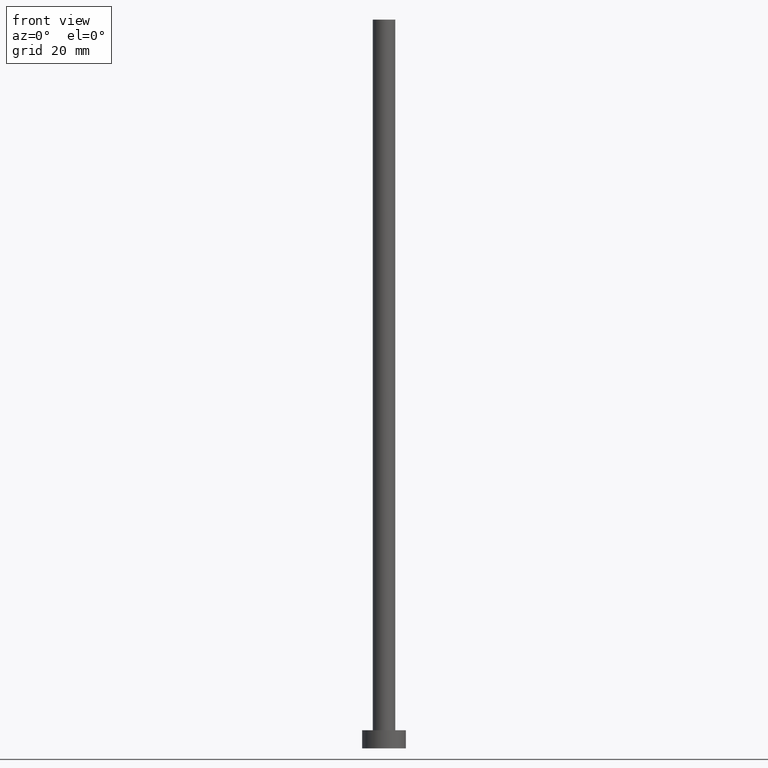
[diagram: clean part render]
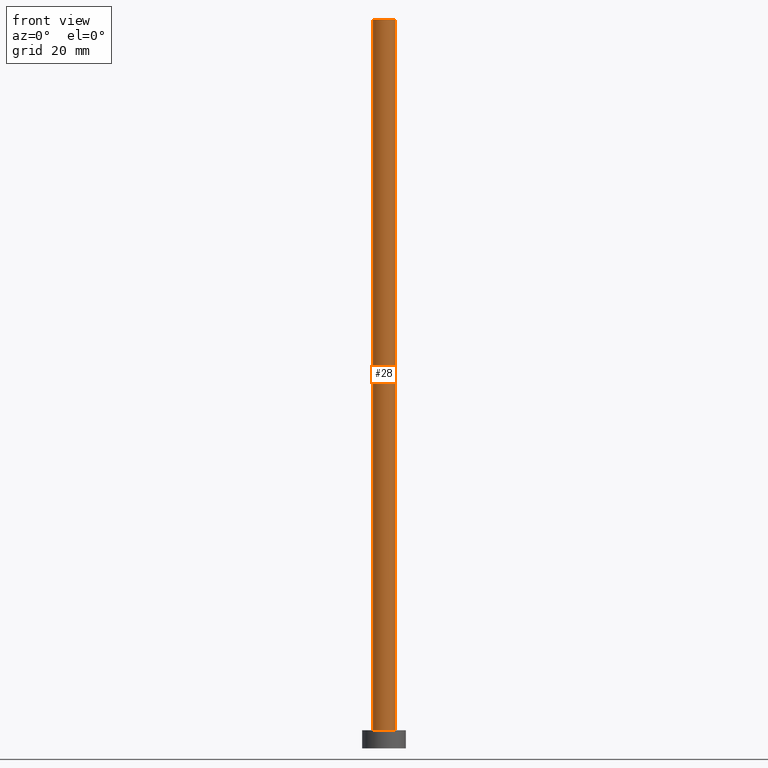
[diagram: same view with one face highlighted and labeled with its STEP entity id]
A machine part, front view. The second image highlights one B-rep face of the part: STEP entity #28.
In plain terms, the highlighted cylindrical surface (edge-blend (fillet) strip) has radius 3.1 mm, axis along (-0, -0, -1).
Its self-contained STEP definition (entity closure, byte-faithful):
#25 = CARTESIAN_POINT ( 'NONE',  ( 3.100000000000000089, 3.796405077356794918E-16, 200.0000000000000000 ) ) ;
#28 = ADVANCED_FACE ( 'NONE', ( #206 ), #65, .T. ) ;
#29 = AXIS2_PLACEMENT_3D ( 'NONE', #229, #156, #35 ) ;
#34 = AXIS2_PLACEMENT_3D ( 'NONE', #84, #150, #107 ) ;
#35 = DIRECTION ( 'NONE',  ( 1.000000000000000000, 0.000000000000000000, 0.000000000000000000 ) ) ;
#47 = CARTESIAN_POINT ( 'NONE',  ( -3.100000000000000089, 0.000000000000000000, 5.000000000000000000 ) ) ;
#49 = DIRECTION ( 'NONE',  ( -1.000000000000000000, 0.000000000000000000, 0.000000000000000000 ) ) ;
#54 = CARTESIAN_POINT ( 'NONE',  ( -3.100000000000000089, 0.000000000000000000, 200.0000000000000000 ) ) ;
#56 = VERTEX_POINT ( 'NONE', #47 ) ;
#65 = CYLINDRICAL_SURFACE ( 'NONE', #190, 3.100000000000000089 ) ;
#84 = CARTESIAN_POINT ( 'NONE',  ( 0.000000000000000000, 0.000000000000000000, 5.000000000000000000 ) ) ;
#86 = DIRECTION ( 'NONE',  ( -0.000000000000000000, -0.000000000000000000, -1.000000000000000000 ) ) ;
#90 = CARTESIAN_POINT ( 'NONE',  ( 3.100000000000000089, 3.796405077356794918E-16, 200.0000000000000000 ) ) ;
#98 = EDGE_LOOP ( 'NONE', ( #195, #179, #253, #120 ) ) ;
#101 = CARTESIAN_POINT ( 'NONE',  ( -3.100000000000000089, 0.000000000000000000, 200.0000000000000000 ) ) ;
#107 = DIRECTION ( 'NONE',  ( 1.000000000000000000, 0.000000000000000000, 0.000000000000000000 ) ) ;
#116 = EDGE_CURVE ( 'NONE', #178, #149, #223, .T. ) ;
#120 = ORIENTED_EDGE ( 'NONE', *, *, #144, .T. ) ;
#139 = EDGE_CURVE ( 'NONE', #242, #56, #171, .T. ) ;
#144 = EDGE_CURVE ( 'NONE', #56, #149, #151, .T. ) ;
#146 = VECTOR ( 'NONE', #173, 1000.000000000000000 ) ;
#147 = CARTESIAN_POINT ( 'NONE',  ( 0.000000000000000000, 0.000000000000000000, 200.0000000000000000 ) ) ;
#149 = VERTEX_POINT ( 'NONE', #249 ) ;
#150 = DIRECTION ( 'NONE',  ( 0.000000000000000000, 0.000000000000000000, 1.000000000000000000 ) ) ;
#151 = CIRCLE ( 'NONE', #34, 3.100000000000000089 ) ;
#156 = DIRECTION ( 'NONE',  ( 0.000000000000000000, 0.000000000000000000, 1.000000000000000000 ) ) ;
#171 = LINE ( 'NONE', #101, #146 ) ;
#173 = DIRECTION ( 'NONE',  ( -0.000000000000000000, -0.000000000000000000, -1.000000000000000000 ) ) ;
#178 = VERTEX_POINT ( 'NONE', #25 ) ;
#179 = ORIENTED_EDGE ( 'NONE', *, *, #243, .F. ) ;
#190 = AXIS2_PLACEMENT_3D ( 'NONE', #147, #86, #49 ) ;
#195 = ORIENTED_EDGE ( 'NONE', *, *, #116, .F. ) ;
#203 = VECTOR ( 'NONE', #244, 1000.000000000000000 ) ;
#206 = FACE_OUTER_BOUND ( 'NONE', #98, .T. ) ;
#208 = CIRCLE ( 'NONE', #29, 3.100000000000000089 ) ;
#223 = LINE ( 'NONE', #90, #203 ) ;
#229 = CARTESIAN_POINT ( 'NONE',  ( 0.000000000000000000, 0.000000000000000000, 200.0000000000000000 ) ) ;
#242 = VERTEX_POINT ( 'NONE', #54 ) ;
#243 = EDGE_CURVE ( 'NONE', #242, #178, #208, .T. ) ;
#244 = DIRECTION ( 'NONE',  ( -0.000000000000000000, -0.000000000000000000, -1.000000000000000000 ) ) ;
#249 = CARTESIAN_POINT ( 'NONE',  ( 3.100000000000000089, 3.796405077356794918E-16, 5.000000000000000000 ) ) ;
#253 = ORIENTED_EDGE ( 'NONE', *, *, #139, .T. ) ;